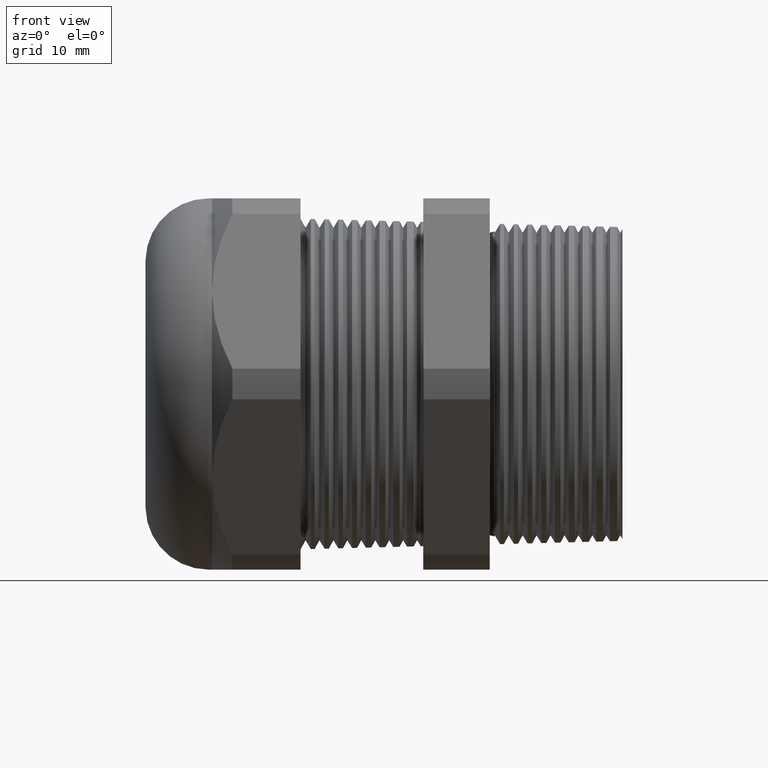
[diagram: clean part render]
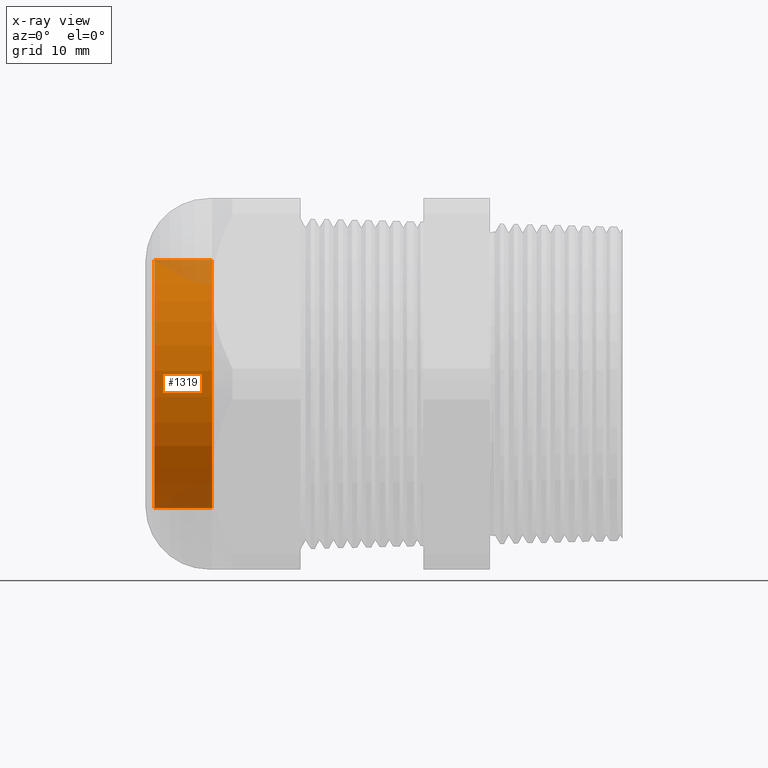
[diagram: x-ray — body ghosted, one internal face saturated and labeled with its STEP entity id]
A machine part, front view, then the same camera in x-ray: the body is ghosted and one INTERNAL B-rep face — a face not visible from any outside direction — is saturated and labeled: STEP entity #1319.
In plain terms, the highlighted cylindrical surface (partial cylindrical patch) has radius 14.0017 mm, axis along (1, 0, 0).
Its self-contained STEP definition (entity closure, byte-faithful):
#1319 = ADVANCED_FACE ( 'NONE', ( #3697 ), #3696, .T. ) ;
#1320 = EDGE_LOOP ( 'NONE', ( #1321, #1322, #1324, #1372 ) ) ;
#1321 = ORIENTED_EDGE ( 'NONE', *, *, #1330, .F. ) ;
#1322 = ORIENTED_EDGE ( 'NONE', *, *, #1323, .T. ) ;
#1323 = EDGE_CURVE ( 'NONE', #1350, #1353, #3695, .T. ) ;
#1324 = ORIENTED_EDGE ( 'NONE', *, *, #1336, .T. ) ;
#1330 = EDGE_CURVE ( 'NONE', #1350, #1331, #3744, .T. ) ;
#1331 = VERTEX_POINT ( 'NONE', #3736 ) ;
#1334 = VERTEX_POINT ( 'NONE', #3730 ) ;
#1336 = EDGE_CURVE ( 'NONE', #1353, #1334, #3729, .T. ) ;
#1350 = VERTEX_POINT ( 'NONE', #3761 ) ;
#1353 = VERTEX_POINT ( 'NONE', #3755 ) ;
#1372 = ORIENTED_EDGE ( 'NONE', *, *, #1386, .F. ) ;
#1386 = EDGE_CURVE ( 'NONE', #1331, #1334, #3788, .T. ) ;
#3688 = DIRECTION ( 'NONE',  ( 1.000000000000000000, 0.0000000000000000000, 0.0000000000000000000 ) ) ;
#3689 = CARTESIAN_POINT ( 'NONE',  ( -1.800999999999999900, 0.0000000000000000000, 0.0000000000000000000 ) ) ;
#3690 = AXIS2_PLACEMENT_3D ( 'NONE', #3689, #3688, #3752 ) ;
#3691 = DIRECTION ( 'NONE',  ( 0.0000000000000000000, 0.0000000000000000000, -1.000000000000000000 ) ) ;
#3692 = DIRECTION ( 'NONE',  ( 1.000000000000000000, 0.0000000000000000000, 0.0000000000000000000 ) ) ;
#3693 = CARTESIAN_POINT ( 'NONE',  ( 0.0000000000000000000, 0.0000000000000000000, 0.0000000000000000000 ) ) ;
#3694 = AXIS2_PLACEMENT_3D ( 'NONE', #3693, #3692, #3691 ) ;
#3695 = CIRCLE ( 'NONE', #3690, 0.5512500000000000200 ) ;
#3696 = CYLINDRICAL_SURFACE ( 'NONE', #3694, 0.5512500000000000200 ) ;
#3697 = FACE_OUTER_BOUND ( 'NONE', #1320, .T. ) ;
#3726 = DIRECTION ( 'NONE',  ( 1.000000000000000000, 0.0000000000000000000, 0.0000000000000000000 ) ) ;
#3727 = VECTOR ( 'NONE', #3726, 39.37007874015748100 ) ;
#3728 = CARTESIAN_POINT ( 'NONE',  ( 0.0000000000000000000, 0.0000000000000000000, -0.5512500000000000200 ) ) ;
#3729 = LINE ( 'NONE', #3728, #3727 ) ;
#3730 = CARTESIAN_POINT ( 'NONE',  ( -1.544724409448818600, 0.0000000000000000000, -0.5512500000000000200 ) ) ;
#3736 = CARTESIAN_POINT ( 'NONE',  ( -1.544724409448818600, 6.750865480299784700E-017, 0.5512500000000000200 ) ) ;
#3737 = DIRECTION ( 'NONE',  ( 1.000000000000000000, 0.0000000000000000000, 0.0000000000000000000 ) ) ;
#3738 = VECTOR ( 'NONE', #3737, 39.37007874015748100 ) ;
#3739 = CARTESIAN_POINT ( 'NONE',  ( 0.0000000000000000000, 6.750865480299784700E-017, 0.5512500000000000200 ) ) ;
#3744 = LINE ( 'NONE', #3739, #3738 ) ;
#3752 = DIRECTION ( 'NONE',  ( 0.0000000000000000000, 0.0000000000000000000, -1.000000000000000000 ) ) ;
#3755 = CARTESIAN_POINT ( 'NONE',  ( -1.800999999999999900, 0.0000000000000000000, -0.5512500000000000200 ) ) ;
#3761 = CARTESIAN_POINT ( 'NONE',  ( -1.800999999999999900, 6.750865480299784700E-017, 0.5512500000000000200 ) ) ;
#3784 = DIRECTION ( 'NONE',  ( 0.0000000000000000000, 0.0000000000000000000, -1.000000000000000000 ) ) ;
#3785 = DIRECTION ( 'NONE',  ( 1.000000000000000000, 0.0000000000000000000, 0.0000000000000000000 ) ) ;
#3786 = CARTESIAN_POINT ( 'NONE',  ( -1.544724409448818600, 0.0000000000000000000, 0.0000000000000000000 ) ) ;
#3787 = AXIS2_PLACEMENT_3D ( 'NONE', #3786, #3785, #3784 ) ;
#3788 = CIRCLE ( 'NONE', #3787, 0.5512500000000000200 ) ;